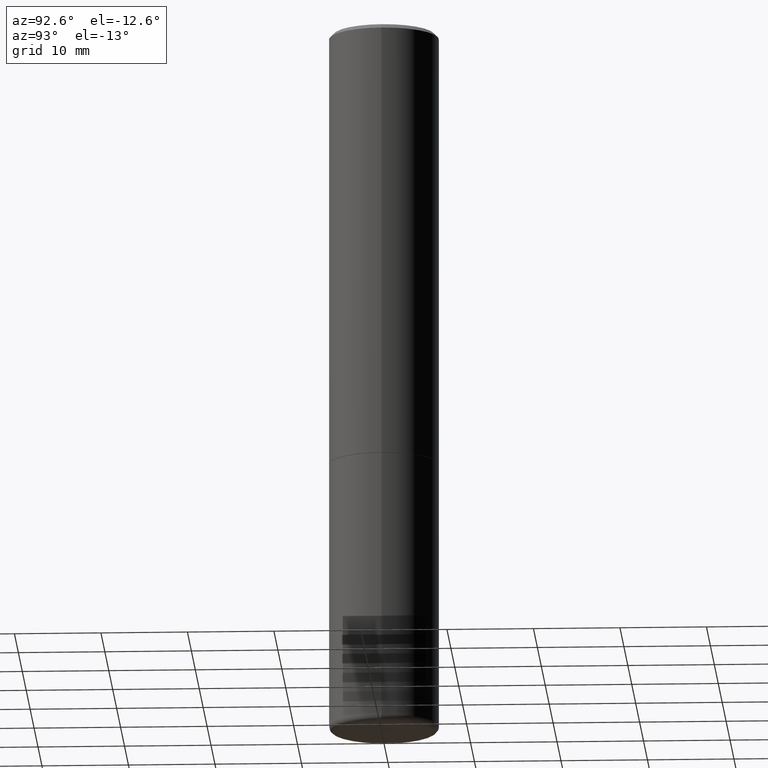
[diagram: clean part render]
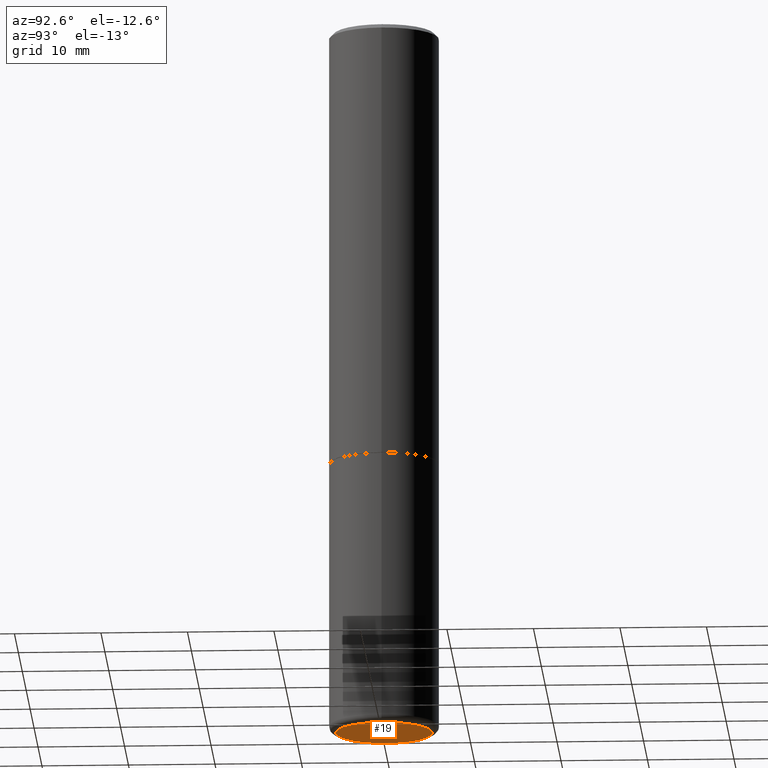
[diagram: same view with one face highlighted and labeled with its STEP entity id]
A machine part, auxiliary view. The second image highlights one B-rep face of the part: STEP entity #19.
In plain terms, the highlighted planar face has unit normal (0, -0, -1).
Its self-contained STEP definition (entity closure, byte-faithful):
#4 = DIRECTION ( 'NONE',  ( -2.445468806185136597E-29, 3.491481338843145583E-15, 1.000000000000000000 ) ) ;
#19 = ADVANCED_FACE ( 'NONE', ( #310 ), #396, .T. ) ;
#23 = CARTESIAN_POINT ( 'NONE',  ( 0.2200000000000000566, -1.288356614033120121E-14, -3.249999999999999556 ) ) ;
#33 = CIRCLE ( 'NONE', #321, 0.2200000000000000566 ) ;
#34 = DIRECTION ( 'NONE',  ( 2.438088387897960049E-29, -3.491481338843145188E-15, -1.000000000000000000 ) ) ;
#35 = DIRECTION ( 'NONE',  ( 1.000000000000000000, -6.982962677686269077E-15, 0.000000000000000000 ) ) ;
#44 = DIRECTION ( 'NONE',  ( -1.000000000000000000, 6.982962677686265922E-15, -4.876176775795935793E-29 ) ) ;
#63 = AXIS2_PLACEMENT_3D ( 'NONE', #335, #34, #44 ) ;
#93 = CARTESIAN_POINT ( 'NONE',  ( 7.947773620101692818E-29, -1.134731435124022127E-14, -3.249999999999999556 ) ) ;
#123 = CARTESIAN_POINT ( 'NONE',  ( -0.2200000000000000566, -9.625166702121341610E-15, -3.249999999999999556 ) ) ;
#141 = ORIENTED_EDGE ( 'NONE', *, *, #303, .F. ) ;
#158 = VERTEX_POINT ( 'NONE', #23 ) ;
#188 = DIRECTION ( 'NONE',  ( -2.445468806185136597E-29, 3.491481338843145583E-15, 1.000000000000000000 ) ) ;
#225 = DIRECTION ( 'NONE',  ( 1.000000000000000000, -6.982962677686269077E-15, 0.000000000000000000 ) ) ;
#276 = EDGE_LOOP ( 'NONE', ( #141, #345 ) ) ;
#296 = CIRCLE ( 'NONE', #347, 0.2200000000000000566 ) ;
#303 = EDGE_CURVE ( 'NONE', #158, #337, #296, .T. ) ;
#310 = FACE_OUTER_BOUND ( 'NONE', #276, .T. ) ;
#321 = AXIS2_PLACEMENT_3D ( 'NONE', #93, #4, #225 ) ;
#333 = EDGE_CURVE ( 'NONE', #337, #158, #33, .T. ) ;
#335 = CARTESIAN_POINT ( 'NONE',  ( 1.358398051899499917E-28, -3.275945279050356991E-15, -3.249999999999999556 ) ) ;
#337 = VERTEX_POINT ( 'NONE', #123 ) ;
#345 = ORIENTED_EDGE ( 'NONE', *, *, #333, .F. ) ;
#347 = AXIS2_PLACEMENT_3D ( 'NONE', #381, #188, #35 ) ;
#381 = CARTESIAN_POINT ( 'NONE',  ( 7.947773620101692818E-29, -1.134731435124022127E-14, -3.249999999999999556 ) ) ;
#396 = PLANE ( 'NONE',  #63 ) ;